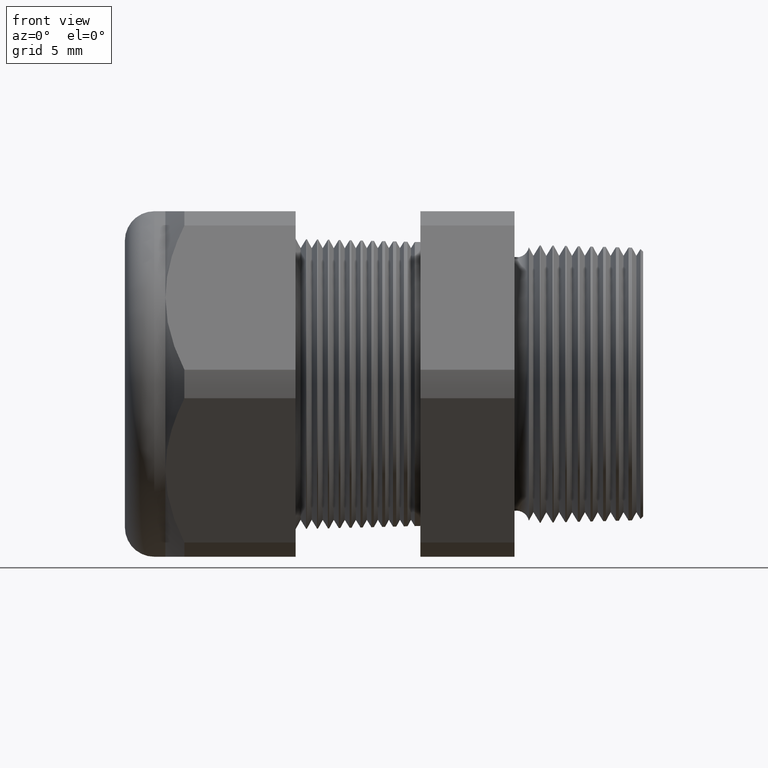
[diagram: clean part render]
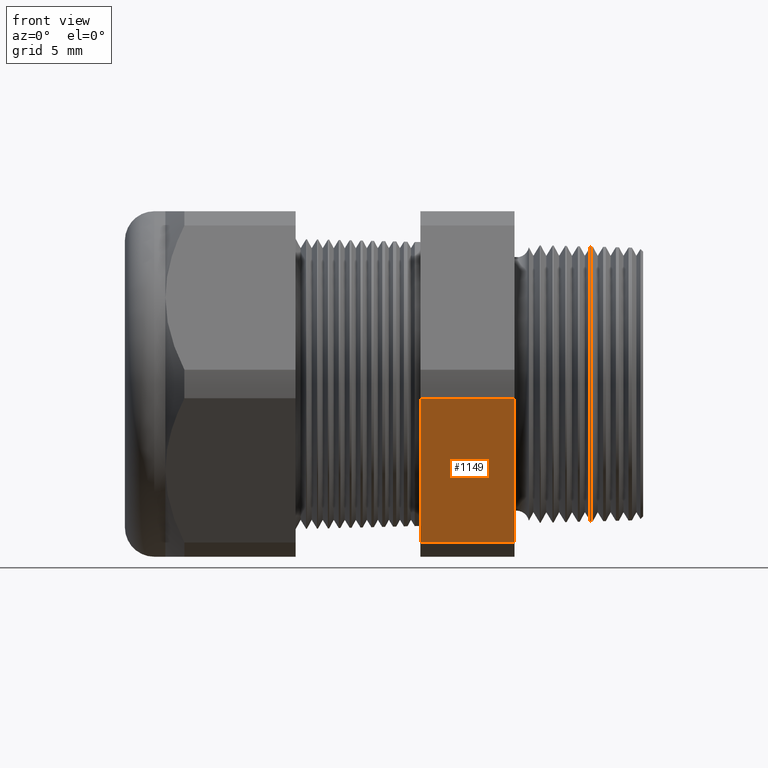
[diagram: same view with one face highlighted and labeled with its STEP entity id]
A machine part, front view. The second image highlights one B-rep face of the part: STEP entity #1149.
In plain terms, the highlighted planar face has unit normal (0, -0.866, -0.5).
Its self-contained STEP definition (entity closure, byte-faithful):
#37 = EDGE_CURVE ( 'NONE', #4722, #4852, #1586, .T. ) ;
#1010 = VERTEX_POINT ( 'NONE', #3414 ) ;
#1012 = EDGE_CURVE ( 'NONE', #1010, #1013, #3413, .T. ) ;
#1013 = VERTEX_POINT ( 'NONE', #3473 ) ;
#1125 = ORIENTED_EDGE ( 'NONE', *, *, #1147, .T. ) ;
#1126 = ORIENTED_EDGE ( 'NONE', *, *, #1012, .F. ) ;
#1127 = ORIENTED_EDGE ( 'NONE', *, *, #1128, .F. ) ;
#1128 = EDGE_CURVE ( 'NONE', #4852, #1010, #3621, .T. ) ;
#1129 = ORIENTED_EDGE ( 'NONE', *, *, #37, .F. ) ;
#1147 = EDGE_CURVE ( 'NONE', #4722, #1013, #3660, .T. ) ;
#1149 = ADVANCED_FACE ( 'NONE', ( #3651 ), #3650, .T. ) ;
#1150 = EDGE_LOOP ( 'NONE', ( #1125, #1126, #1127, #1129 ) ) ;
#1583 = DIRECTION ( 'NONE',  ( 0.0000000000000000000, 0.5000000000000001100, -0.8660254037844384900 ) ) ;
#1584 = VECTOR ( 'NONE', #1583, 39.37007874015748900 ) ;
#1585 = CARTESIAN_POINT ( 'NONE',  ( -0.3100000000000000000, -0.1720319397786861700, -0.6420319397786864400 ) ) ;
#1586 = LINE ( 'NONE', #1585, #1584 ) ;
#3411 = DIRECTION ( 'NONE',  ( 0.0000000000000000000, -0.5000000000000001100, 0.8660254037844384900 ) ) ;
#3412 = CARTESIAN_POINT ( 'NONE',  ( -0.5659055118110235500, -0.1720319397786861700, -0.6420319397786864400 ) ) ;
#3413 = LINE ( 'NONE', #3412, #3474 ) ;
#3414 = CARTESIAN_POINT ( 'NONE',  ( -0.5659055118110235500, -0.2938165587564942600, -0.4310947921287053300 ) ) ;
#3473 = CARTESIAN_POINT ( 'NONE',  ( -0.5659055118110235500, -0.5202473208008777700, -0.03890520787129495000 ) ) ;
#3474 = VECTOR ( 'NONE', #3411, 39.37007874015748900 ) ;
#3618 = DIRECTION ( 'NONE',  ( -1.000000000000000000, 0.0000000000000000000, 0.0000000000000000000 ) ) ;
#3619 = VECTOR ( 'NONE', #3618, 39.37007874015748100 ) ;
#3620 = CARTESIAN_POINT ( 'NONE',  ( 0.03999999999999984800, -0.2938165587564942600, -0.4310947921287053300 ) ) ;
#3621 = LINE ( 'NONE', #3620, #3619 ) ;
#3646 = DIRECTION ( 'NONE',  ( 0.0000000000000000000, 0.5000000000000001100, -0.8660254037844384900 ) ) ;
#3647 = DIRECTION ( 'NONE',  ( 0.0000000000000000000, -0.8660254037844386000, -0.5000000000000002200 ) ) ;
#3648 = CARTESIAN_POINT ( 'NONE',  ( 0.03999999999999984800, -0.2938165587564944300, -0.4310947921287051600 ) ) ;
#3649 = AXIS2_PLACEMENT_3D ( 'NONE', #3648, #3647, #3646 ) ;
#3650 = PLANE ( 'NONE',  #3649 ) ;
#3651 = FACE_OUTER_BOUND ( 'NONE', #1150, .T. ) ;
#3652 = DIRECTION ( 'NONE',  ( -1.000000000000000000, 0.0000000000000000000, 0.0000000000000000000 ) ) ;
#3653 = VECTOR ( 'NONE', #3652, 39.37007874015748100 ) ;
#3654 = CARTESIAN_POINT ( 'NONE',  ( 0.03999999999999984800, -0.5202473208008777700, -0.03890520787129495000 ) ) ;
#3660 = LINE ( 'NONE', #3654, #3653 ) ;
#4253 = CARTESIAN_POINT ( 'NONE',  ( -0.3100000000000000000, -0.5202473208008777700, -0.03890520787129495000 ) ) ;
#4564 = CARTESIAN_POINT ( 'NONE',  ( -0.3100000000000000000, -0.2938165587564942600, -0.4310947921287053300 ) ) ;
#4722 = VERTEX_POINT ( 'NONE', #4253 ) ;
#4852 = VERTEX_POINT ( 'NONE', #4564 ) ;